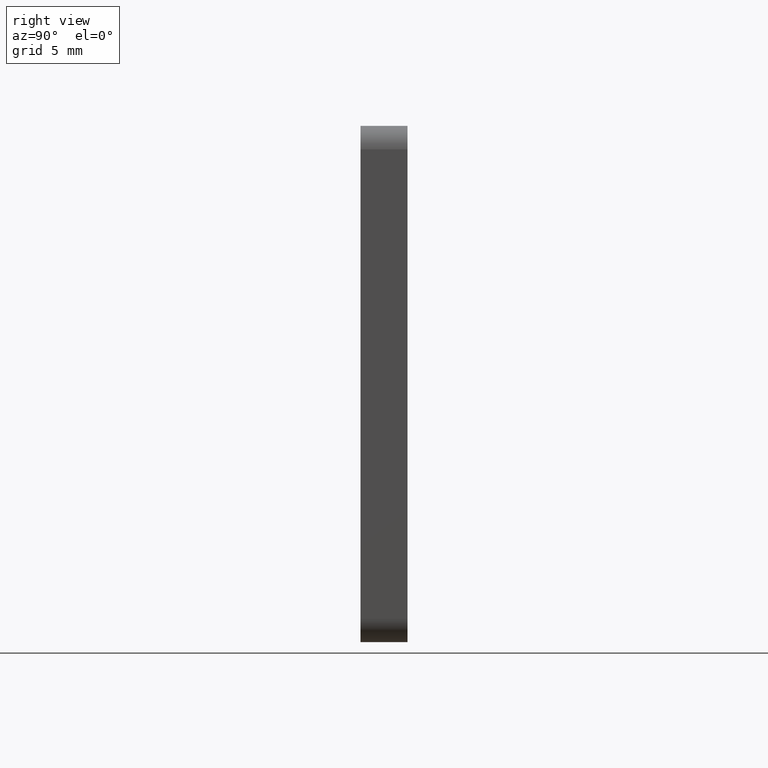
[diagram: clean part render]
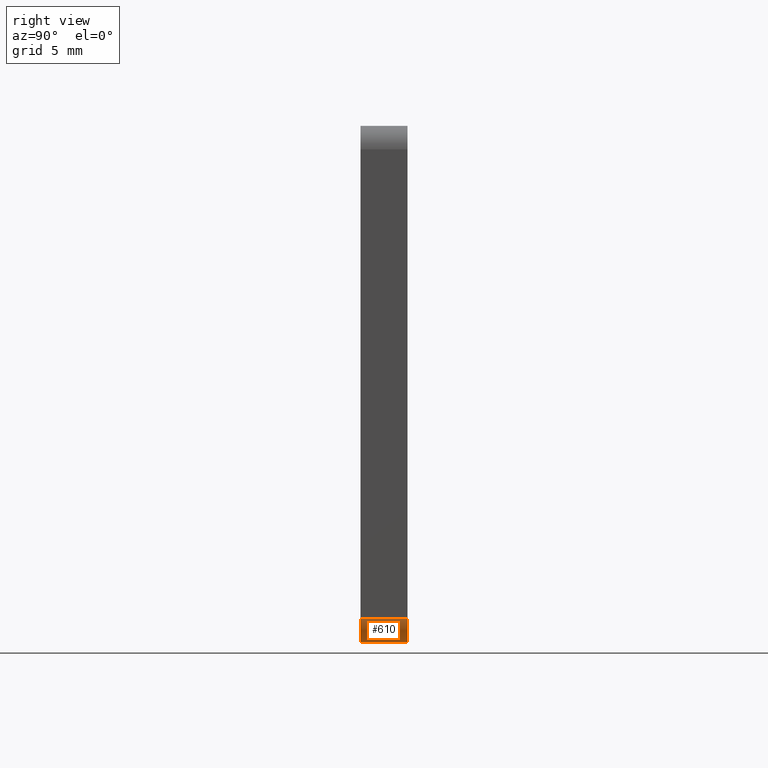
[diagram: same view with one face highlighted and labeled with its STEP entity id]
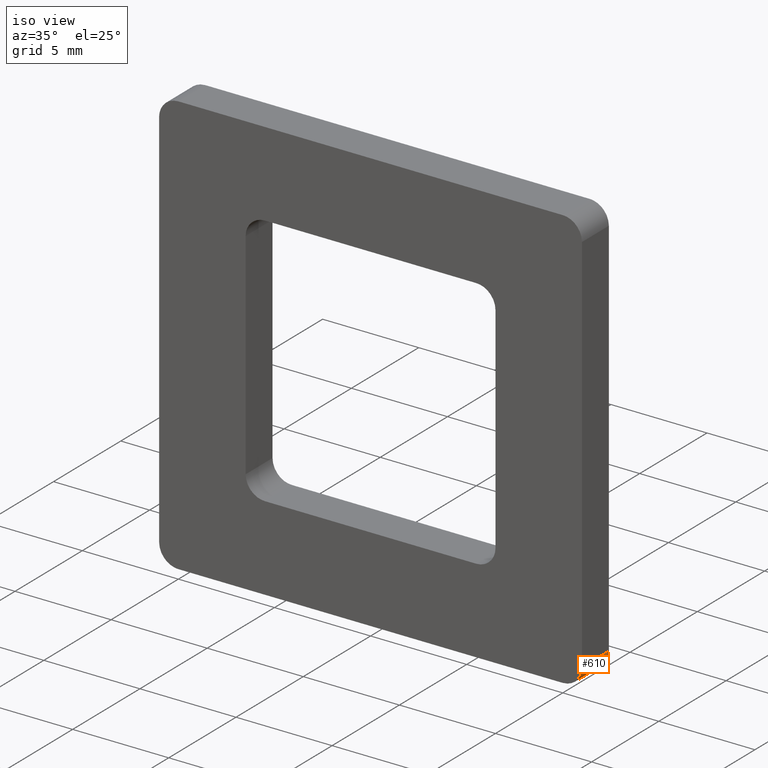
[diagram: same view with one face highlighted and labeled with its STEP entity id]
A machine part, right view. The second image highlights one B-rep face of the part: STEP entity #610.
A second angle (iso view) of the same face is appended — the face is thin or edge-on in the first view.
In plain terms, the highlighted face is a freeform B-spline surface patch.
Its self-contained STEP definition (entity closure, byte-faithful):
#380=CARTESIAN_POINT('',(10.0,0.0,-11.0));
#381=VERTEX_POINT('',#380);
#387=CARTESIAN_POINT('',(11.0,0.0,-10.0));
#388=VERTEX_POINT('',#387);
#389=CARTESIAN_POINT('',(10.0,0.0,-11.0));
#390=CARTESIAN_POINT('',(11.0,0.0,-11.0));
#391=CARTESIAN_POINT('',(11.0,0.0,-10.0));
#399=(BOUNDED_CURVE()B_SPLINE_CURVE(2,(#389,#390,#391),.UNSPECIFIED.,.F.,.U.)CURVE()GEOMETRIC_REPRESENTATION_ITEM()QUASI_UNIFORM_CURVE()RATIONAL_B_SPLINE_CURVE((1.0,0.707106781186548,1.0))REPRESENTATION_ITEM(''));
#400=EDGE_CURVE('',#381,#388,#399,.T.);
#464=CARTESIAN_POINT('',(11.0,2.0,-10.0));
#465=VERTEX_POINT('',#464);
#471=CARTESIAN_POINT('',(10.0,2.0,-11.0));
#472=VERTEX_POINT('',#471);
#473=CARTESIAN_POINT('',(10.0,2.0,-11.0));
#474=CARTESIAN_POINT('',(11.0,2.000000000000000,-11.0));
#475=CARTESIAN_POINT('',(11.0,2.0,-10.0));
#483=(BOUNDED_CURVE()B_SPLINE_CURVE(2,(#473,#474,#475),.UNSPECIFIED.,.F.,.U.)CURVE()GEOMETRIC_REPRESENTATION_ITEM()QUASI_UNIFORM_CURVE()RATIONAL_B_SPLINE_CURVE((1.0,0.707106781186548,1.0))REPRESENTATION_ITEM(''));
#484=EDGE_CURVE('',#472,#465,#483,.T.);
#576=CARTESIAN_POINT('',(11.0,2.0,-10.0));
#577=CARTESIAN_POINT('',(11.0,0.0,-10.0));
#578=QUASI_UNIFORM_CURVE('',1,(#576,#577),.UNSPECIFIED.,.F.,.U.);
#579=EDGE_CURVE('',#465,#388,#578,.T.);
#586=CARTESIAN_POINT('',(10.999657324975560,2.050000000000000,-9.973823051692127));
#587=CARTESIAN_POINT('',(10.999657324975560,-0.051250000000000,-9.973823051692127));
#588=CARTESIAN_POINT('',(11.028492260166260,2.050000000000000,-11.074984800554720));
#589=CARTESIAN_POINT('',(11.028492260166260,-0.051250000000000,-11.074984800554720));
#590=CARTESIAN_POINT('',(9.929679924374014,2.050000000000000,-10.997524479380806));
#591=CARTESIAN_POINT('',(9.929679924374014,-0.051250000000000,-10.997524479380806));
#599=(BOUNDED_SURFACE()B_SPLINE_SURFACE(1,2,((#586,#588,#590),(#587,#589,#591)),.UNSPECIFIED.,.F.,.F.,.U.)B_SPLINE_SURFACE_WITH_KNOTS((2,2),(3,3),(0.0,2.101250000000000),(0.0,0.994518632334191),.UNSPECIFIED.)GEOMETRIC_REPRESENTATION_ITEM()RATIONAL_B_SPLINE_SURFACE(((1.0,0.670944223154768,0.996392648609106),(1.0,0.670944223154768,0.996392648609106)))REPRESENTATION_ITEM('')SURFACE());
#600=ORIENTED_EDGE('',*,*,#400,.F.);
#601=CARTESIAN_POINT('',(10.0,2.0,-11.0));
#602=CARTESIAN_POINT('',(10.0,0.0,-11.0));
#603=QUASI_UNIFORM_CURVE('',1,(#601,#602),.UNSPECIFIED.,.F.,.U.);
#604=EDGE_CURVE('',#472,#381,#603,.T.);
#605=ORIENTED_EDGE('',*,*,#604,.F.);
#606=ORIENTED_EDGE('',*,*,#484,.T.);
#607=ORIENTED_EDGE('',*,*,#579,.T.);
#608=EDGE_LOOP('',(#600,#605,#606,#607));
#609=FACE_OUTER_BOUND('',#608,.T.);
#610=ADVANCED_FACE('',(#609),#599,.T.);